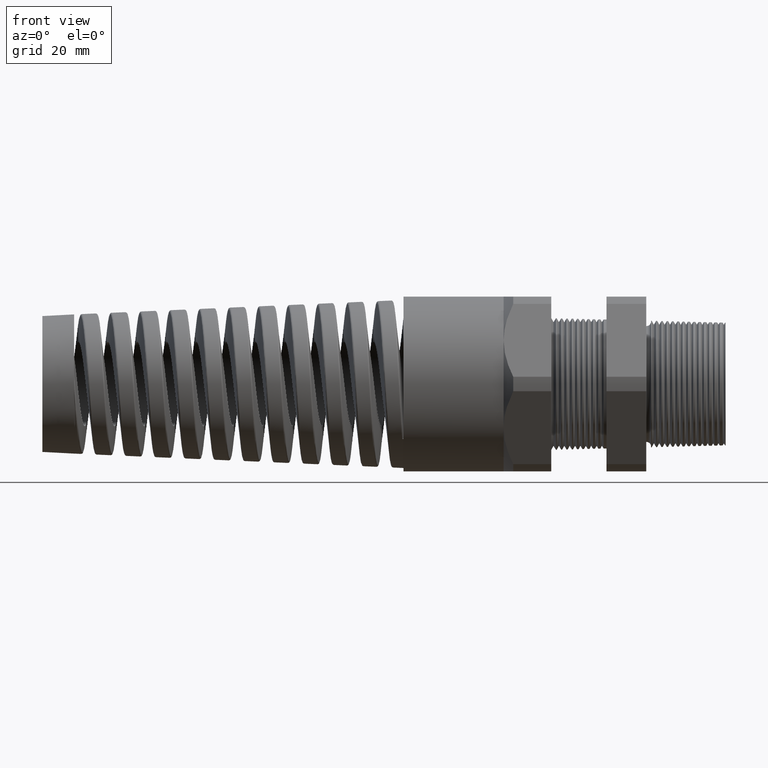
[diagram: clean part render]
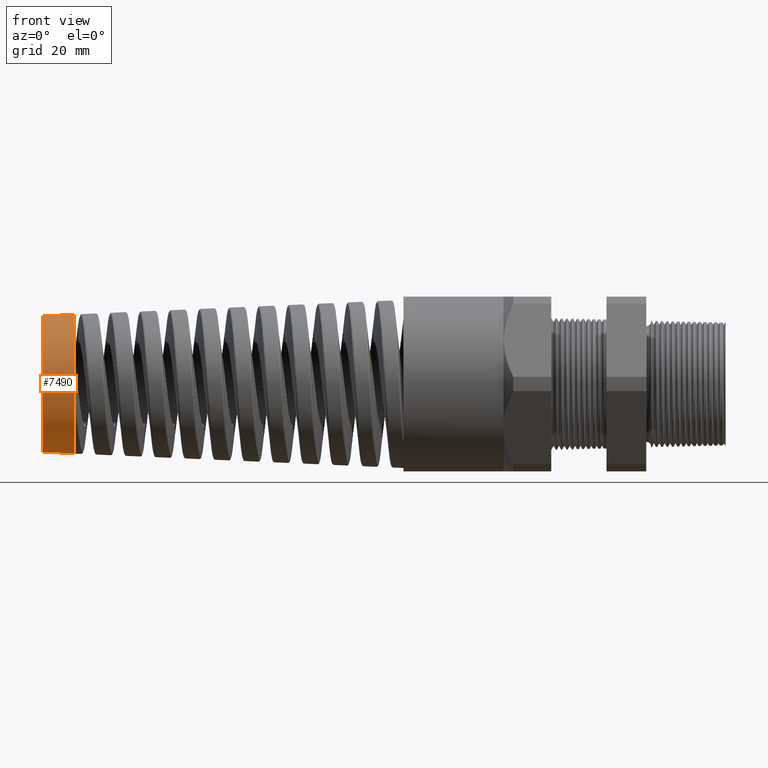
[diagram: same view with one face highlighted and labeled with its STEP entity id]
A machine part, front view. The second image highlights one B-rep face of the part: STEP entity #7490.
In plain terms, the highlighted conical surface has half-angle 3 deg.
Its self-contained STEP definition (entity closure, byte-faithful):
#6424 = EDGE_CURVE ( 'NONE', #6425, #6563, #15092, .T. ) ;
#6425 = VERTEX_POINT ( 'NONE', #15083 ) ;
#6563 = VERTEX_POINT ( 'NONE', #16016 ) ;
#7264 = EDGE_CURVE ( 'NONE', #6425, #7423, #19472, .T. ) ;
#7265 = ORIENTED_EDGE ( 'NONE', *, *, #7266, .F. ) ;
#7266 = EDGE_CURVE ( 'NONE', #7284, #7423, #19500, .T. ) ;
#7284 = VERTEX_POINT ( 'NONE', #19640 ) ;
#7349 = VERTEX_POINT ( 'NONE', #19749 ) ;
#7351 = EDGE_LOOP ( 'NONE', ( #7491, #7493, #7421, #7422, #7265 ) ) ;
#7421 = ORIENTED_EDGE ( 'NONE', *, *, #6424, .F. ) ;
#7422 = ORIENTED_EDGE ( 'NONE', *, *, #7264, .T. ) ;
#7423 = VERTEX_POINT ( 'NONE', #19958 ) ;
#7490 = ADVANCED_FACE ( 'NONE', ( #20166 ), #20165, .T. ) ;
#7491 = ORIENTED_EDGE ( 'NONE', *, *, #7492, .F. ) ;
#7492 = EDGE_CURVE ( 'NONE', #7349, #7284, #20159, .T. ) ;
#7493 = ORIENTED_EDGE ( 'NONE', *, *, #7494, .T. ) ;
#7494 = EDGE_CURVE ( 'NONE', #7349, #6563, #20154, .T. ) ;
#15083 = CARTESIAN_POINT ( 'NONE',  ( -4.564000000000000900, -0.5157558011499747700, -0.04284913461785009500 ) ) ;
#15084 = DIRECTION ( 'NONE',  ( 0.0000000000000000000, 0.0000000000000000000, -1.000000000000000000 ) ) ;
#15085 = DIRECTION ( 'NONE',  ( 1.000000000000000000, 0.0000000000000000000, 0.0000000000000000000 ) ) ;
#15086 = CARTESIAN_POINT ( 'NONE',  ( -4.564000000000000900, 0.0000000000000000000, 0.0000000000000000000 ) ) ;
#15087 = AXIS2_PLACEMENT_3D ( 'NONE', #15086, #15085, #15084 ) ;
#15092 = CIRCLE ( 'NONE', #15087, 0.5175326992155733200 ) ;
#16016 = CARTESIAN_POINT ( 'NONE',  ( -4.564000000000000900, -6.337947635484345000E-017, -0.5175326992155674400 ) ) ;
#19472 = CIRCLE ( 'NONE', #19499, 0.5175326992155674400 ) ;
#19493 = DIRECTION ( 'NONE',  ( 0.9986295347545738300, 0.0000000000000000000, 0.05233595624294395300 ) ) ;
#19494 = VECTOR ( 'NONE', #19493, 39.37007874015748900 ) ;
#19495 = CARTESIAN_POINT ( 'NONE',  ( -4.564000000000000900, 0.0000000000000000000, 0.5175326992155674400 ) ) ;
#19496 = DIRECTION ( 'NONE',  ( 0.0000000000000000000, 0.0000000000000000000, 1.000000000000000000 ) ) ;
#19497 = DIRECTION ( 'NONE',  ( -1.000000000000000000, 0.0000000000000000000, 0.0000000000000000000 ) ) ;
#19498 = CARTESIAN_POINT ( 'NONE',  ( -4.564000000000000900, 0.0000000000000000000, 0.0000000000000000000 ) ) ;
#19499 = AXIS2_PLACEMENT_3D ( 'NONE', #19498, #19497, #19496 ) ;
#19500 = LINE ( 'NONE', #19495, #19494 ) ;
#19640 = CARTESIAN_POINT ( 'NONE',  ( -4.800220472440946300, 0.0000000000000000000, 0.5051529088337466400 ) ) ;
#19749 = CARTESIAN_POINT ( 'NONE',  ( -4.800220472440946300, -6.262143282158285400E-017, -0.5051529088337466400 ) ) ;
#19958 = CARTESIAN_POINT ( 'NONE',  ( -4.564000000000000900, 0.0000000000000000000, 0.5175326992155674400 ) ) ;
#20151 = DIRECTION ( 'NONE',  ( 0.9986295347545738300, -6.409306129323724800E-018, -0.05233595624294395300 ) ) ;
#20152 = VECTOR ( 'NONE', #20151, 39.37007874015748900 ) ;
#20153 = CARTESIAN_POINT ( 'NONE',  ( -4.564000000000000900, -6.337947635484345000E-017, -0.5175326992155674400 ) ) ;
#20154 = LINE ( 'NONE', #20153, #20152 ) ;
#20156 = DIRECTION ( 'NONE',  ( 0.0000000000000000000, 0.0000000000000000000, 1.000000000000000000 ) ) ;
#20157 = DIRECTION ( 'NONE',  ( -1.000000000000000000, 0.0000000000000000000, 0.0000000000000000000 ) ) ;
#20158 = AXIS2_PLACEMENT_3D ( 'NONE', #20164, #20157, #20156 ) ;
#20159 = CIRCLE ( 'NONE', #20158, 0.5051529088337466400 ) ;
#20160 = DIRECTION ( 'NONE',  ( 0.0000000000000000000, 0.0000000000000000000, 1.000000000000000000 ) ) ;
#20161 = DIRECTION ( 'NONE',  ( 1.000000000000000000, 0.0000000000000000000, 0.0000000000000000000 ) ) ;
#20162 = CARTESIAN_POINT ( 'NONE',  ( -4.564000000000000900, 0.0000000000000000000, 0.0000000000000000000 ) ) ;
#20163 = AXIS2_PLACEMENT_3D ( 'NONE', #20162, #20161, #20160 ) ;
#20164 = CARTESIAN_POINT ( 'NONE',  ( -4.800220472440946300, 0.0000000000000000000, 0.0000000000000000000 ) ) ;
#20165 = CONICAL_SURFACE ( 'NONE', #20163, 0.5175326992155674400, 0.05235987755983000100 ) ;
#20166 = FACE_OUTER_BOUND ( 'NONE', #7351, .T. ) ;